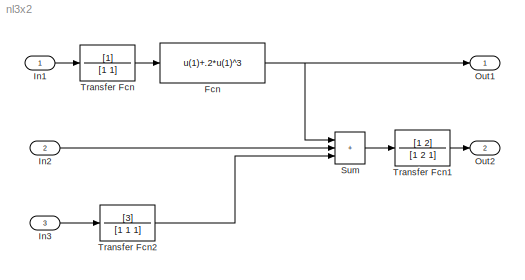
MODEL nl3x2
KIND model
CONFIG AbsTol = auto
CONFIG FixedStep = auto
CONFIG MaxStep = auto
CONFIG RelTol = 1e-3
CONFIG Solver = ode45
CONFIG StartTime = 0.0
CONFIG StopTime = 10.0
BLOCK [Fcn] Fcn
  Expr = u(1)+.2*u(1)^3
BLOCK [Inport] In1
  Port = 1
  PortWidth = -1
  SampleTime = -1
BLOCK [Inport] In2
  Port = 2
  PortWidth = -1
  SampleTime = -1
BLOCK [Inport] In3
  Port = 3
  PortWidth = -1
  SampleTime = -1
BLOCK [Outport] Out1
  InitialOutput = []
  OutputWhenDisabled = held
  Port = 1
BLOCK [Outport] Out2
  InitialOutput = []
  OutputWhenDisabled = held
  Port = 2
BLOCK [Sum] Sum
  IconShape = rectangular
  Inputs = +++
  Ports = [3, 1, 0, 0, 0]
BLOCK [TransferFcn] Transfer Fcn
  Denominator = [1 1]
  Numerator = [1]
BLOCK [TransferFcn] Transfer Fcn1
  Denominator = [1 2 1]
  Numerator = [1 2]
BLOCK [TransferFcn] Transfer Fcn2
  Denominator = [1 1 1]
  Numerator = [3]
NET Fcn:1 -> Out1:1, Sum:1
LINE In1:1 -> Transfer Fcn:1
LINE In2:1 -> Sum:2
LINE In3:1 -> Transfer Fcn2:1
LINE Sum:1 -> Transfer Fcn1:1
LINE Transfer Fcn1:1 -> Out2:1
LINE Transfer Fcn2:1 -> Sum:3
LINE Transfer Fcn:1 -> Fcn:1
note: NET lines group one-source signal fan-out (src -> all destinations, sorted); 1:1 wires keep LINE
